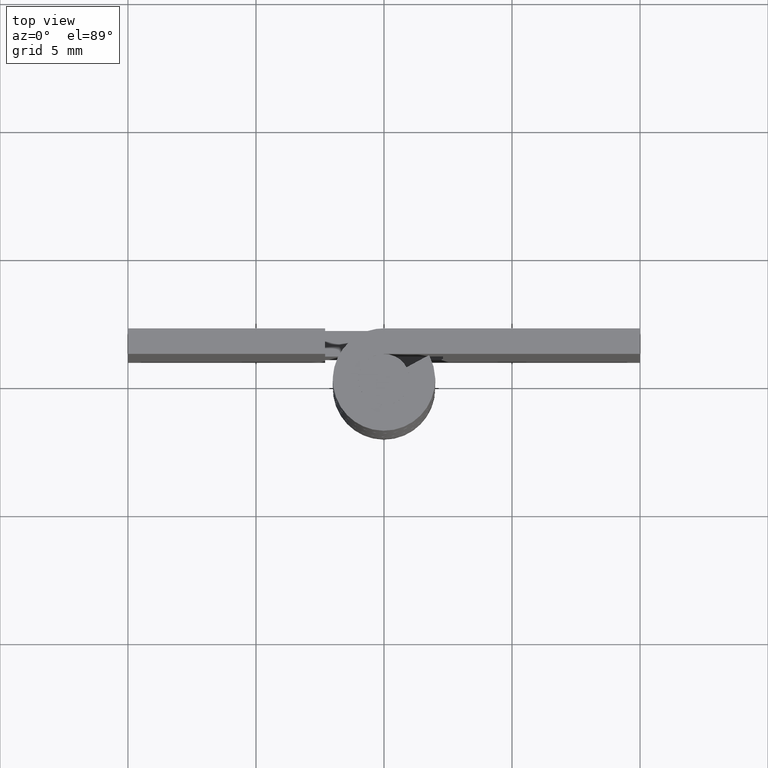
[diagram: clean part render]
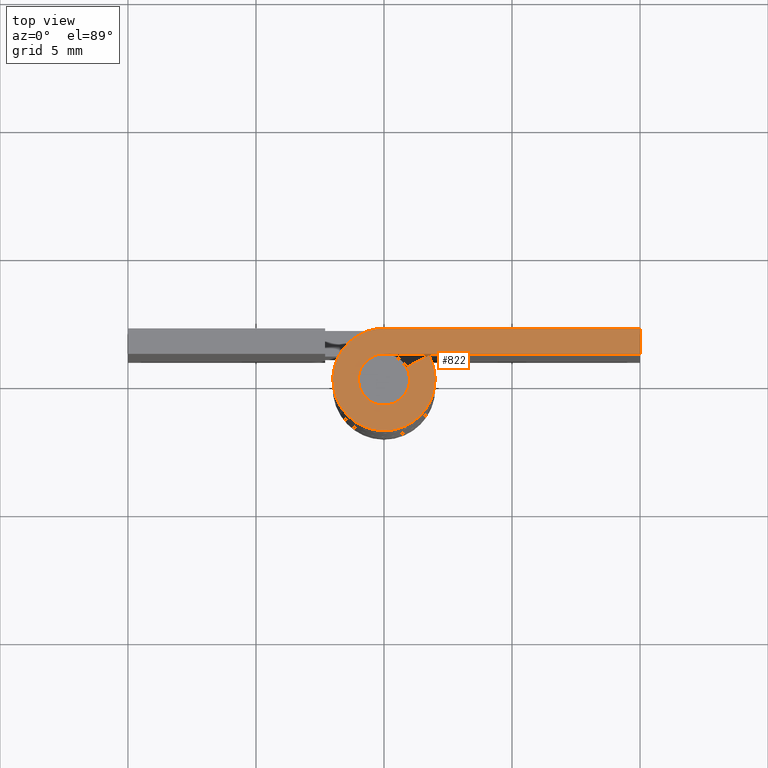
[diagram: same view with one face highlighted and labeled with its STEP entity id]
A machine part, top view. The second image highlights one B-rep face of the part: STEP entity #822.
In plain terms, the highlighted face is a freeform B-spline surface patch.
Its self-contained STEP definition (entity closure, byte-faithful):
#745=CARTESIAN_POINT('',(-2.599322366427884,-2.199489972669553,20.0));
#746=CARTESIAN_POINT('',(10.599396606395590,-2.199489972669553,20.0));
#747=CARTESIAN_POINT('',(-2.599322366427884,2.199785350751693,20.0));
#748=CARTESIAN_POINT('',(10.599396606395590,2.199785350751693,20.0));
#749=B_SPLINE_SURFACE_WITH_KNOTS('',1,1,((#745,#747),(#746,#748)),.UNSPECIFIED.,.F.,.F.,.U.,(2,2),(2,2),(0.0,13.198718972823480),(0.0,4.399275323421245),.UNSPECIFIED.);
#750=CARTESIAN_POINT('',(10.0,2.0,20.0));
#751=VERTEX_POINT('',#750);
#752=CARTESIAN_POINT('',(-3.673819E-016,2.0,20.0));
#753=VERTEX_POINT('',#752);
#754=CARTESIAN_POINT('',(10.0,2.0,20.0));
#755=CARTESIAN_POINT('',(-3.673819E-016,2.0,20.0));
#756=QUASI_UNIFORM_CURVE('',1,(#754,#755),.UNSPECIFIED.,.F.,.U.);
#757=EDGE_CURVE('',#751,#753,#756,.T.);
#758=ORIENTED_EDGE('',*,*,#757,.T.);
#759=CARTESIAN_POINT('',(1.759971590679805,0.950000000000000,20.0));
#760=VERTEX_POINT('',#759);
#761=CARTESIAN_POINT('',(1.759971590679804,0.950000000000000,20.0));
#762=CARTESIAN_POINT('',(2.483544518215584,-0.390492417103144,20.000000000000004));
#763=CARTESIAN_POINT('',(1.383518044628769,-1.444256840103792,20.0));
#764=CARTESIAN_POINT('',(0.283491571041955,-2.498021263104437,20.000000000000004));
#765=CARTESIAN_POINT('',(-1.024695076595959,-1.717556403731767,20.0));
#766=CARTESIAN_POINT('',(-2.332881724233873,-0.937091544359097,20.000000000000004));
#767=CARTESIAN_POINT('',(-1.928096575312494,0.531454227820451,20.0));
#768=CARTESIAN_POINT('',(-1.523311426391115,2.000000000000000,20.000000000000004));
#769=CARTESIAN_POINT('',(0.0,2.0,20.0));
#777=(BOUNDED_CURVE()B_SPLINE_CURVE(2,(#761,#762,#763,#764,#765,#766,#767,#768,#769),.UNSPECIFIED.,.F.,.U.)B_SPLINE_CURVE_WITH_KNOTS((3,2,2,2,3),(0.0,0.250000000000000,0.500000000000000,0.750000000000000,1.0),.UNSPECIFIED.)CURVE()GEOMETRIC_REPRESENTATION_ITEM()RATIONAL_B_SPLINE_CURVE((1.0,0.795527219493534,1.0,0.795527219493534,1.0,0.795527219493534,1.0,0.795527219493534,1.0))REPRESENTATION_ITEM(''));
#778=EDGE_CURVE('',#760,#753,#777,.T.);
#779=ORIENTED_EDGE('',*,*,#778,.F.);
#780=CARTESIAN_POINT('',(0.879985795339901,0.475000000000000,20.0));
#781=VERTEX_POINT('',#780);
#782=CARTESIAN_POINT('',(1.759971590679805,0.950000000000000,20.0));
#783=CARTESIAN_POINT('',(0.879985795339901,0.475000000000000,20.0));
#784=QUASI_UNIFORM_CURVE('',1,(#782,#783),.UNSPECIFIED.,.F.,.U.);
#785=EDGE_CURVE('',#760,#781,#784,.T.);
#786=ORIENTED_EDGE('',*,*,#785,.T.);
#787=CARTESIAN_POINT('',(-1.836910E-016,1.0,20.0));
#788=VERTEX_POINT('',#787);
#789=CARTESIAN_POINT('',(0.879985795339902,0.475000000000001,20.0));
#790=CARTESIAN_POINT('',(1.241772259107792,-0.195246208551571,19.999999999999996));
#791=CARTESIAN_POINT('',(0.691759022314385,-0.722128420051895,20.0));
#792=CARTESIAN_POINT('',(0.141745785520978,-1.249010631552219,19.999999999999996));
#793=CARTESIAN_POINT('',(-0.512347538297979,-0.858778201865884,20.0));
#794=CARTESIAN_POINT('',(-1.166440862116937,-0.468545772179549,19.999999999999996));
#795=CARTESIAN_POINT('',(-0.964048287656247,0.265727113910226,20.0));
#796=CARTESIAN_POINT('',(-0.761655713195557,1.0,19.999999999999996));
#797=CARTESIAN_POINT('',(0.0,1.0,20.0));
#805=(BOUNDED_CURVE()B_SPLINE_CURVE(2,(#789,#790,#791,#792,#793,#794,#795,#796,#797),.UNSPECIFIED.,.F.,.U.)B_SPLINE_CURVE_WITH_KNOTS((3,2,2,2,3),(0.0,0.250000000000000,0.500000000000000,0.750000000000000,1.0),.UNSPECIFIED.)CURVE()GEOMETRIC_REPRESENTATION_ITEM()RATIONAL_B_SPLINE_CURVE((1.0,0.795527219493534,1.0,0.795527219493534,1.0,0.795527219493534,1.0,0.795527219493534,1.0))REPRESENTATION_ITEM(''));
#806=EDGE_CURVE('',#781,#788,#805,.T.);
#807=ORIENTED_EDGE('',*,*,#806,.T.);
#808=CARTESIAN_POINT('',(10.0,1.0,20.0));
#809=VERTEX_POINT('',#808);
#810=CARTESIAN_POINT('',(-1.836910E-016,1.0,20.0));
#811=CARTESIAN_POINT('',(10.0,1.0,20.0));
#812=QUASI_UNIFORM_CURVE('',1,(#810,#811),.UNSPECIFIED.,.F.,.U.);
#813=EDGE_CURVE('',#788,#809,#812,.T.);
#814=ORIENTED_EDGE('',*,*,#813,.T.);
#815=CARTESIAN_POINT('',(10.0,1.0,20.0));
#816=CARTESIAN_POINT('',(10.0,2.0,20.0));
#817=QUASI_UNIFORM_CURVE('',1,(#815,#816),.UNSPECIFIED.,.F.,.U.);
#818=EDGE_CURVE('',#809,#751,#817,.T.);
#819=ORIENTED_EDGE('',*,*,#818,.T.);
#820=EDGE_LOOP('',(#758,#779,#786,#807,#814,#819));
#821=FACE_OUTER_BOUND('',#820,.T.);
#822=ADVANCED_FACE('',(#821),#749,.T.);